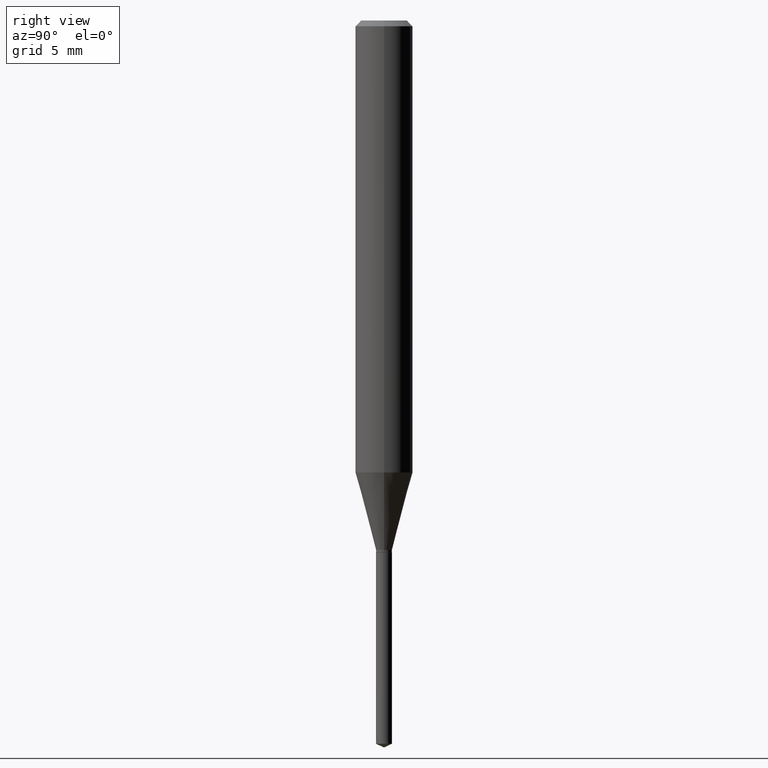
[diagram: clean part render]
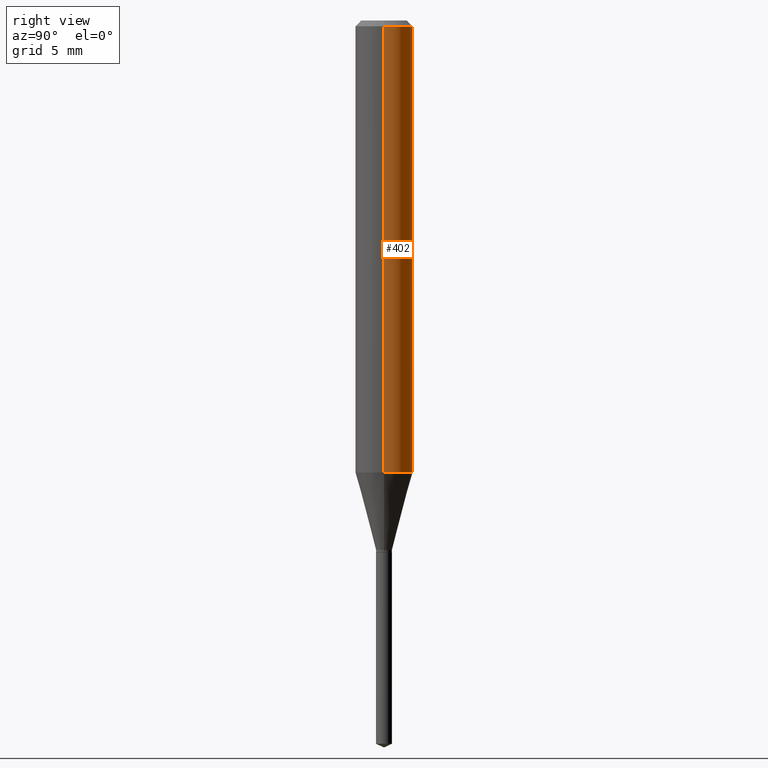
[diagram: same view with one face highlighted and labeled with its STEP entity id]
A machine part, right view. The second image highlights one B-rep face of the part: STEP entity #402.
In plain terms, the highlighted cylindrical surface (edge-blend (fillet) strip) has radius 1.4999 mm, axis along (-0, 0, 1).
Its self-contained STEP definition (entity closure, byte-faithful):
#3 = DIRECTION ( 'NONE',  ( 1.000000000000000000, -6.982962677686267499E-15, 0.000000000000000000 ) ) ;
#22 = CARTESIAN_POINT ( 'NONE',  ( -0.05904999999999999832, -1.225002009473624692E-15, -0.01181000000000006871 ) ) ;
#37 = CYLINDRICAL_SURFACE ( 'NONE', #155, 0.05905000000000005383 ) ;
#80 = ORIENTED_EDGE ( 'NONE', *, *, #113, .F. ) ;
#85 = CARTESIAN_POINT ( 'NONE',  ( 0.000000000000000000, 0.000000000000000000, 0.000000000000000000 ) ) ;
#98 = CIRCLE ( 'NONE', #119, 0.05904999999999999832 ) ;
#106 = EDGE_CURVE ( 'NONE', #289, #203, #98, .T. ) ;
#113 = EDGE_CURVE ( 'NONE', #324, #289, #412, .T. ) ;
#114 = CARTESIAN_POINT ( 'NONE',  ( 2.888098660104663328E-31, -4.123439461173779030E-17, -0.01181000000000006871 ) ) ;
#119 = AXIS2_PLACEMENT_3D ( 'NONE', #114, #292, #262 ) ;
#121 = DIRECTION ( 'NONE',  ( -2.445468806185136597E-29, 3.491481338843145583E-15, 1.000000000000000000 ) ) ;
#155 = AXIS2_PLACEMENT_3D ( 'NONE', #85, #303, #350 ) ;
#203 = VERTEX_POINT ( 'NONE', #22 ) ;
#206 = ORIENTED_EDGE ( 'NONE', *, *, #106, .F. ) ;
#210 = ORIENTED_EDGE ( 'NONE', *, *, #409, .T. ) ;
#222 = CARTESIAN_POINT ( 'NONE',  ( 0.05905000000000010935, -3.660264541385565561E-15, -0.9302414305168089648 ) ) ;
#233 = FACE_OUTER_BOUND ( 'NONE', #352, .T. ) ;
#261 = DIRECTION ( 'NONE',  ( -2.445468806185136877E-29, 3.491481338843145188E-15, 1.000000000000000000 ) ) ;
#262 = DIRECTION ( 'NONE',  ( 1.000000000000000000, -6.982962677686266711E-15, 0.000000000000000000 ) ) ;
#289 = VERTEX_POINT ( 'NONE', #291 ) ;
#291 = CARTESIAN_POINT ( 'NONE',  ( 0.05904999999999999832, -4.535783407291118600E-16, -0.01181000000000006871 ) ) ;
#292 = DIRECTION ( 'NONE',  ( -2.445468806185136597E-29, 3.491481338843145583E-15, 1.000000000000000000 ) ) ;
#303 = DIRECTION ( 'NONE',  ( -2.445468806185136597E-29, 3.491481338843145583E-15, 1.000000000000000000 ) ) ;
#317 = VECTOR ( 'NONE', #483, 39.37007874015748143 ) ;
#321 = EDGE_CURVE ( 'NONE', #472, #203, #382, .T. ) ;
#324 = VERTEX_POINT ( 'NONE', #222 ) ;
#344 = CARTESIAN_POINT ( 'NONE',  ( -0.05905000000000005383, 4.195754854663395423E-16, -2.904631170795524694E-30 ) ) ;
#350 = DIRECTION ( 'NONE',  ( 1.000000000000000000, -6.982962677686266711E-15, 4.876176775795935793E-29 ) ) ;
#352 = EDGE_LOOP ( 'NONE', ( #210, #411, #206, #80 ) ) ;
#376 = CARTESIAN_POINT ( 'NONE',  ( 0.05905000000000005383, -4.123439461173744271E-16, 2.879382386107502672E-30 ) ) ;
#382 = LINE ( 'NONE', #344, #384 ) ;
#384 = VECTOR ( 'NONE', #261, 39.37007874015748143 ) ;
#402 = ADVANCED_FACE ( 'NONE', ( #233 ), #37, .T. ) ;
#409 = EDGE_CURVE ( 'NONE', #324, #472, #445, .T. ) ;
#411 = ORIENTED_EDGE ( 'NONE', *, *, #321, .T. ) ;
#412 = LINE ( 'NONE', #376, #317 ) ;
#421 = AXIS2_PLACEMENT_3D ( 'NONE', #454, #121, #3 ) ;
#432 = CARTESIAN_POINT ( 'NONE',  ( -0.05905000000000010935, -2.828345109801851148E-15, -0.9302414305168089648 ) ) ;
#445 = CIRCLE ( 'NONE', #421, 0.05905000000000010935 ) ;
#454 = CARTESIAN_POINT ( 'NONE',  ( 2.274876400549894550E-29, -3.247920595268191429E-15, -0.9302414305168089648 ) ) ;
#472 = VERTEX_POINT ( 'NONE', #432 ) ;
#483 = DIRECTION ( 'NONE',  ( -2.445468806185136877E-29, 3.491481338843145188E-15, 1.000000000000000000 ) ) ;